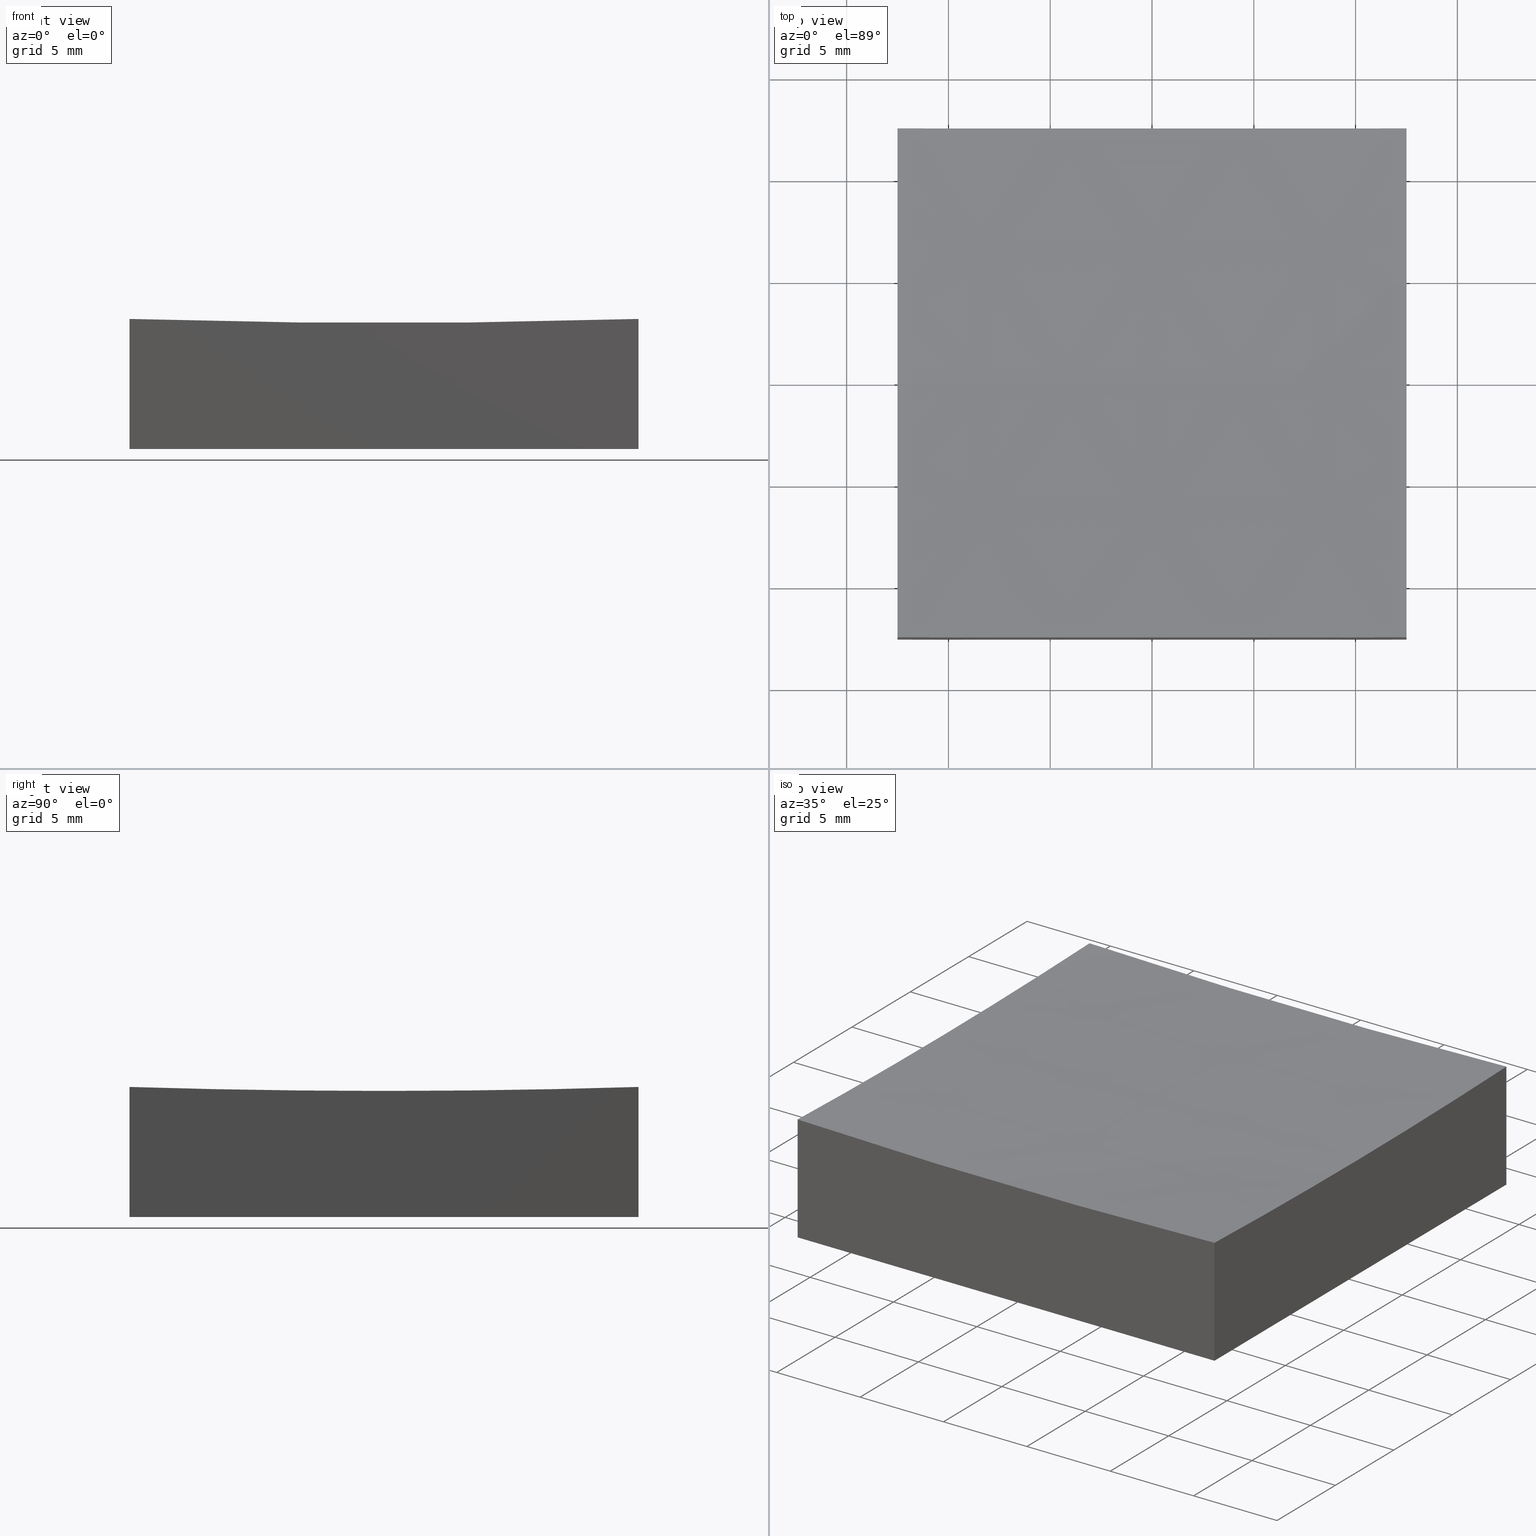
[diagram: canonical four-view strip — front | top / right | iso, engineering-drawing reading convention]
A machine part, canonical four-view strip (front | top / right | iso — engineering-drawing reading convention). The complete STEP part file that produces these views, byte-faithful:
ISO-10303-21;
HEADER;
FILE_DESCRIPTION (( 'STEP AP214' ),
    '1' );
FILE_NAME ('270040.STEP',
    '2020-06-05T06:39:44',
    ( '' ),
    ( '' ),
    'SwSTEP 2.0',
    'SolidWorks 2019',
    '' );
FILE_SCHEMA (( 'AUTOMOTIVE_DESIGN' ));
ENDSEC;

DATA;
#1 = DIRECTION ( 'NONE',  ( -1.388456903851858804E-16, 1.000000000000000000, 0.0000000000000000000 ) ) ;
#2 = CARTESIAN_POINT ( 'NONE',  ( 0.0000000000000000000, 0.0000000000000000000, 0.0000000000000000000 ) ) ;
#3 = ADVANCED_FACE ( 'NONE', ( #151 ), #167, .T. ) ;
#4 = CARTESIAN_POINT ( 'NONE',  ( 12.50000000000000178, 1.734723475976800586E-15, 406.0000000000000000 ) ) ;
#5 = EDGE_CURVE ( 'NONE', #32, #72, #222, .T. ) ;
#6 = EDGE_CURVE ( 'NONE', #46, #210, #146, .T. ) ;
#7 = EDGE_LOOP ( 'NONE', ( #93, #135, #118, #29 ) ) ;
#8 = LINE ( 'NONE', #149, #60 ) ;
#9 = ORIENTED_EDGE ( 'NONE', *, *, #27, .F. ) ;
#10 = ORIENTED_EDGE ( 'NONE', *, *, #5, .F. ) ;
#11 = SURFACE_STYLE_FILL_AREA ( #232 ) ;
#12 = DIRECTION ( 'NONE',  ( 1.000000000000000000, 0.0000000000000000000, 0.0000000000000000000 ) ) ;
#13 =( NAMED_UNIT ( * ) PLANE_ANGLE_UNIT ( ) SI_UNIT ( $, .RADIAN. ) );
#14 = DIRECTION ( 'NONE',  ( 0.0000000000000000000, 1.000000000000000000, 0.0000000000000000000 ) ) ;
#15 = AXIS2_PLACEMENT_3D ( 'NONE', #2, #84, #22 ) ;
#16 = APPLICATION_CONTEXT ( 'automotive_design' ) ;
#17 = EDGE_CURVE ( 'NONE', #175, #73, #194, .T. ) ;
#18 = DIRECTION ( 'NONE',  ( 1.387778780781445676E-16, -1.000000000000000000, 0.0000000000000000000 ) ) ;
#19 = LINE ( 'NONE', #126, #117 ) ;
#20 = ADVANCED_FACE ( 'NONE', ( #145 ), #220, .F. ) ;
#21 = DIRECTION ( 'NONE',  ( 1.000000000000000000, 1.387778780781445676E-16, -0.0000000000000000000 ) ) ;
#22 = DIRECTION ( 'NONE',  ( -1.000000000000000000, 0.0000000000000000000, -0.0000000000000000000 ) ) ;
#23 = COLOUR_RGB ( '',1.000000000000000000, 1.000000000000000000, 1.000000000000000000 ) ;
#24 = ADVANCED_FACE ( 'NONE', ( #108 ), #238, .T. ) ;
#25 = CARTESIAN_POINT ( 'NONE',  ( -12.49999999999999645, 1.530808498934189155E-15, 6.195360207013139942 ) ) ;
#26 = ORIENTED_EDGE ( 'NONE', *, *, #58, .F. ) ;
#27 = EDGE_CURVE ( 'NONE', #134, #92, #188, .T. ) ;
#28 = CARTESIAN_POINT ( 'NONE',  ( 4.972066004538253326E-14, 0.0000000000000000000, 406.0000000000000000 ) ) ;
#29 = ORIENTED_EDGE ( 'NONE', *, *, #69, .F. ) ;
#30 = ORIENTED_EDGE ( 'NONE', *, *, #38, .T. ) ;
#31 = PRODUCT_DEFINITION_CONTEXT ( 'detailed design', #16, 'design' ) ;
#32 = VERTEX_POINT ( 'NONE', #185 ) ;
#33 = CIRCLE ( 'NONE', #184, 399.8046397929869613 ) ;
#34 =( NAMED_UNIT ( * ) SI_UNIT ( $, .STERADIAN. ) SOLID_ANGLE_UNIT ( ) );
#35 = CARTESIAN_POINT ( 'NONE',  ( 0.0000000000000000000, 0.0000000000000000000, 0.0000000000000000000 ) ) ;
#36 = FILL_AREA_STYLE_COLOUR ( '', #124 ) ;
#37 = VECTOR ( 'NONE', #178, 1000.000000000000000 ) ;
#38 = EDGE_CURVE ( 'NONE', #210, #72, #19, .T. ) ;
#39 = ADVANCED_FACE ( 'NONE', ( #219 ), #236, .F. ) ;
#40 = CARTESIAN_POINT ( 'NONE',  ( 12.50000000000000000, -9.629649721936179265E-32, 6.195360207013139942 ) ) ;
#41 = DIRECTION ( 'NONE',  ( 0.0000000000000000000, -0.0000000000000000000, 1.000000000000000000 ) ) ;
#42 = DIRECTION ( 'NONE',  ( 1.000000000000000000, 0.0000000000000000000, 0.0000000000000000000 ) ) ;
#43 = CARTESIAN_POINT ( 'NONE',  ( 12.50000000000000000, 12.50000000000000000, 20.00000000000000000 ) ) ;
#44 = AXIS2_PLACEMENT_3D ( 'NONE', #180, #160, #76 ) ;
#45 =( NAMED_UNIT ( * ) SI_UNIT ( $, .STERADIAN. ) SOLID_ANGLE_UNIT ( ) );
#46 = VERTEX_POINT ( 'NONE', #40 ) ;
#47 = DIRECTION ( 'NONE',  ( 0.0000000000000000000, 0.0000000000000000000, 1.000000000000000000 ) ) ;
#48 = ORIENTED_EDGE ( 'NONE', *, *, #158, .F. ) ;
#49 = UNCERTAINTY_MEASURE_WITH_UNIT (LENGTH_MEASURE( 1.000000000000000082E-05 ), #235, 'distance_accuracy_value', 'NONE');
#50 = ORIENTED_EDGE ( 'NONE', *, *, #132, .T. ) ;
#51 = ORIENTED_EDGE ( 'NONE', *, *, #198, .T. ) ;
#52 = ORIENTED_EDGE ( 'NONE', *, *, #158, .T. ) ;
#53 = ADVANCED_FACE ( 'NONE', ( #81 ), #125, .F. ) ;
#54 = AXIS2_PLACEMENT_3D ( 'NONE', #66, #63, #147 ) ;
#55 = PRODUCT_CONTEXT ( 'NONE', #246, 'mechanical' ) ;
#56 = SURFACE_SIDE_STYLE ('',( #234 ) ) ;
#57 = CARTESIAN_POINT ( 'NONE',  ( 12.50000000000000000, 12.50000000000000000, 0.0000000000000000000 ) ) ;
#58 = EDGE_CURVE ( 'NONE', #210, #73, #181, .T. ) ;
#59 = PLANE ( 'NONE',  #161 ) ;
#60 = VECTOR ( 'NONE', #122, 1000.000000000000000 ) ;
#61 = CARTESIAN_POINT ( 'NONE',  ( 4.972066004538253326E-14, 0.0000000000000000000, 406.0000000000000000 ) ) ;
#62 = CARTESIAN_POINT ( 'NONE',  ( -12.49999999999999645, -12.50000000000000000, 20.00000000000000000 ) ) ;
#63 = DIRECTION ( 'NONE',  ( 1.000000000000000000, 1.387778780781445676E-16, -0.0000000000000000000 ) ) ;
#64 = CARTESIAN_POINT ( 'NONE',  ( 12.50000000000000355, -12.50000000000000000, 20.00000000000000000 ) ) ;
#65 = AXIS2_PLACEMENT_3D ( 'NONE', #4, #87, #187 ) ;
#66 = CARTESIAN_POINT ( 'NONE',  ( -12.49999999999999822, -1.734723475976813997E-15, 406.0000000000000000 ) ) ;
#67 = CIRCLE ( 'NONE', #171, 400.0000000000000000 ) ;
#68 = DIRECTION ( 'NONE',  ( 1.000000000000000000, 0.0000000000000000000, -1.387778780781445676E-16 ) ) ;
#69 = EDGE_CURVE ( 'NONE', #32, #177, #186, .T. ) ;
#70 = ORIENTED_EDGE ( 'NONE', *, *, #6, .F. ) ;
#71 = ORIENTED_EDGE ( 'NONE', *, *, #69, .T. ) ;
#72 = VERTEX_POINT ( 'NONE', #106 ) ;
#73 = VERTEX_POINT ( 'NONE', #203 ) ;
#74 =( NAMED_UNIT ( * ) SI_UNIT ( $, .STERADIAN. ) SOLID_ANGLE_UNIT ( ) );
#75 = AXIS2_PLACEMENT_3D ( 'NONE', #127, #21, #204 ) ;
#76 = DIRECTION ( 'NONE',  ( -1.388456903851858804E-16, 1.000000000000000000, 0.0000000000000000000 ) ) ;
#77 = ADVANCED_BREP_SHAPE_REPRESENTATION ( '270040', ( #130, #206 ), #86 ) ;
#78 = EDGE_CURVE ( 'NONE', #211, #175, #168, .T. ) ;
#79 =( LENGTH_UNIT ( ) NAMED_UNIT ( * ) SI_UNIT ( .MILLI., .METRE. ) );
#80 = STYLED_ITEM ( 'NONE', ( #139 ), #130 ) ;
#81 = FACE_OUTER_BOUND ( 'NONE', #248, .T. ) ;
#82 = EDGE_CURVE ( 'NONE', #177, #92, #250, .T. ) ;
#83 = DIRECTION ( 'NONE',  ( 1.000000000000000000, 0.0000000000000000000, -1.387778780781445676E-16 ) ) ;
#84 = DIRECTION ( 'NONE',  ( 0.0000000000000000000, 0.0000000000000000000, -1.000000000000000000 ) ) ;
#85 = PRODUCT ( '270040', '270040', '', ( #55 ) ) ;
#86 =( GEOMETRIC_REPRESENTATION_CONTEXT ( 3 ) GLOBAL_UNCERTAINTY_ASSIGNED_CONTEXT ( ( #155 ) ) GLOBAL_UNIT_ASSIGNED_CONTEXT ( ( #231, #13, #34 ) ) REPRESENTATION_CONTEXT ( 'NONE', 'WORKASPACE' ) );
#87 = DIRECTION ( 'NONE',  ( 1.000000000000000000, 1.387778780781445676E-16, -0.0000000000000000000 ) ) ;
#88 = VECTOR ( 'NONE', #109, 1000.000000000000000 ) ;
#89 = CIRCLE ( 'NONE', #217, 400.0000000000000000 ) ;
#90 = CARTESIAN_POINT ( 'NONE',  ( -12.49999999999999645, -12.50000000000000000, 20.00000000000000000 ) ) ;
#91 = ORIENTED_EDGE ( 'NONE', *, *, #58, .T. ) ;
#92 = VERTEX_POINT ( 'NONE', #104 ) ;
#93 = ORIENTED_EDGE ( 'NONE', *, *, #5, .T. ) ;
#94 = EDGE_LOOP ( 'NONE', ( #153, #52, #245, #91, #209 ) ) ;
#95 = PRODUCT_DEFINITION_SHAPE ( 'NONE', 'NONE',  #249 ) ;
#96 =( NAMED_UNIT ( * ) PLANE_ANGLE_UNIT ( ) SI_UNIT ( $, .RADIAN. ) );
#97 = MECHANICAL_DESIGN_GEOMETRIC_PRESENTATION_REPRESENTATION (  '', ( #163 ), #142 ) ;
#98 = ADVANCED_FACE ( 'NONE', ( #99 ), #59, .T. ) ;
#99 = FACE_OUTER_BOUND ( 'NONE', #115, .T. ) ;
#100 = SURFACE_STYLE_USAGE ( .BOTH. , #196 ) ;
#101 = AXIS2_PLACEMENT_3D ( 'NONE', #143, #107, #123 ) ;
#102 = DIRECTION ( 'NONE',  ( 1.000000000000000000, 0.0000000000000000000, 0.0000000000000000000 ) ) ;
#103 = APPLICATION_PROTOCOL_DEFINITION ( 'draft international standard', 'automotive_design', 1998, #246 ) ;
#104 = CARTESIAN_POINT ( 'NONE',  ( 12.50000000000000355, -12.50000000000000000, 0.0000000000000000000 ) ) ;
#105 = MECHANICAL_DESIGN_GEOMETRIC_PRESENTATION_REPRESENTATION (  '', ( #80 ), #148 ) ;
#106 = CARTESIAN_POINT ( 'NONE',  ( 12.50000000000000000, 12.50000000000000000, 0.0000000000000000000 ) ) ;
#107 = DIRECTION ( 'NONE',  ( 0.0000000000000000000, 1.000000000000000000, 0.0000000000000000000 ) ) ;
#108 = FACE_OUTER_BOUND ( 'NONE', #225, .T. ) ;
#109 = DIRECTION ( 'NONE',  ( -0.0000000000000000000, -0.0000000000000000000, -1.000000000000000000 ) ) ;
#110 = EDGE_CURVE ( 'NONE', #134, #46, #213, .T. ) ;
#111 = PRODUCT_DEFINITION_FORMATION_WITH_SPECIFIED_SOURCE ( '�κ�', '', #85, .NOT_KNOWN. ) ;
#112 = CARTESIAN_POINT ( 'NONE',  ( -12.49999999999999645, -12.50000000000000000, 0.0000000000000000000 ) ) ;
#113 = ORIENTED_EDGE ( 'NONE', *, *, #17, .T. ) ;
#114 = DIRECTION ( 'NONE',  ( -0.0000000000000000000, -0.0000000000000000000, -1.000000000000000000 ) ) ;
#115 = EDGE_LOOP ( 'NONE', ( #26, #30, #10, #190 ) ) ;
#116 = ORIENTED_EDGE ( 'NONE', *, *, #82, .T. ) ;
#117 = VECTOR ( 'NONE', #165, 1000.000000000000000 ) ;
#118 = ORIENTED_EDGE ( 'NONE', *, *, #82, .F. ) ;
#119 = FILL_AREA_STYLE ('',( #36 ) ) ;
#120 = LINE ( 'NONE', #57, #37 ) ;
#121 = PRESENTATION_LAYER_ASSIGNMENT (  '', '', ( #163 ) ) ;
#122 = DIRECTION ( 'NONE',  ( -0.0000000000000000000, -0.0000000000000000000, -1.000000000000000000 ) ) ;
#123 = DIRECTION ( 'NONE',  ( 0.0000000000000000000, 0.0000000000000000000, 1.000000000000000000 ) ) ;
#124 = COLOUR_RGB ( '',1.000000000000000000, 1.000000000000000000, 1.000000000000000000 ) ;
#125 = PLANE ( 'NONE',  #212 ) ;
#126 = CARTESIAN_POINT ( 'NONE',  ( 12.50000000000000000, 12.50000000000000000, 20.00000000000000000 ) ) ;
#127 = CARTESIAN_POINT ( 'NONE',  ( -12.50000000000000000, 12.50000000000000000, 20.00000000000000000 ) ) ;
#128 = DIRECTION ( 'NONE',  ( 1.000000000000000000, 1.387778780781445676E-16, -0.0000000000000000000 ) ) ;
#129 = LINE ( 'NONE', #90, #201 ) ;
#130 = MANIFOLD_SOLID_BREP ( '�г�-��ת2', #136 ) ;
#131 = ORIENTED_EDGE ( 'NONE', *, *, #78, .T. ) ;
#132 = EDGE_CURVE ( 'NONE', #134, #211, #33, .T. ) ;
#133 = DIRECTION ( 'NONE',  ( 0.0000000000000000000, 0.0000000000000000000, -1.000000000000000000 ) ) ;
#134 = VERTEX_POINT ( 'NONE', #172 ) ;
#135 = ORIENTED_EDGE ( 'NONE', *, *, #233, .T. ) ;
#136 = CLOSED_SHELL ( 'NONE', ( #39, #98, #20, #53, #24, #3, #195 ) ) ;
#137 = VECTOR ( 'NONE', #102, 1000.000000000000000 ) ;
#138 = CARTESIAN_POINT ( 'NONE',  ( -12.49999999999999645, -12.50000000000000000, 6.390815921355486040 ) ) ;
#139 = PRESENTATION_STYLE_ASSIGNMENT (( #197 ) ) ;
#140 = FILL_AREA_STYLE_COLOUR ( '', #23 ) ;
#141 =( NAMED_UNIT ( * ) PLANE_ANGLE_UNIT ( ) SI_UNIT ( $, .RADIAN. ) );
#142 =( GEOMETRIC_REPRESENTATION_CONTEXT ( 3 ) GLOBAL_UNCERTAINTY_ASSIGNED_CONTEXT ( ( #49 ) ) GLOBAL_UNIT_ASSIGNED_CONTEXT ( ( #235, #96, #74 ) ) REPRESENTATION_CONTEXT ( 'NONE', 'WORKASPACE' ) );
#143 = CARTESIAN_POINT ( 'NONE',  ( 4.972066004538253326E-14, 12.50000000000000000, 406.0000000000000000 ) ) ;
#144 = DIRECTION ( 'NONE',  ( 0.0000000000000000000, 1.000000000000000000, 0.0000000000000000000 ) ) ;
#145 = FACE_OUTER_BOUND ( 'NONE', #227, .T. ) ;
#146 = CIRCLE ( 'NONE', #65, 399.8046397929869045 ) ;
#147 = DIRECTION ( 'NONE',  ( -1.388456903851858804E-16, 1.000000000000000000, 0.0000000000000000000 ) ) ;
#148 =( GEOMETRIC_REPRESENTATION_CONTEXT ( 3 ) GLOBAL_UNCERTAINTY_ASSIGNED_CONTEXT ( ( #228 ) ) GLOBAL_UNIT_ASSIGNED_CONTEXT ( ( #79, #141, #45 ) ) REPRESENTATION_CONTEXT ( 'NONE', 'WORKASPACE' ) );
#149 = CARTESIAN_POINT ( 'NONE',  ( -12.50000000000000000, 12.50000000000000000, 20.00000000000000000 ) ) ;
#150 = DIRECTION ( 'NONE',  ( 0.0000000000000000000, 1.000000000000000000, 0.0000000000000000000 ) ) ;
#151 = FACE_OUTER_BOUND ( 'NONE', #7, .T. ) ;
#152 = ORIENTED_EDGE ( 'NONE', *, *, #27, .T. ) ;
#153 = ORIENTED_EDGE ( 'NONE', *, *, #166, .F. ) ;
#154 = ORIENTED_EDGE ( 'NONE', *, *, #110, .F. ) ;
#155 = UNCERTAINTY_MEASURE_WITH_UNIT (LENGTH_MEASURE( 1.000000000000000082E-05 ), #231, 'distance_accuracy_value', 'NONE');
#156 = ORIENTED_EDGE ( 'NONE', *, *, #132, .F. ) ;
#157 = DIRECTION ( 'NONE',  ( 0.0000000000000000000, 0.0000000000000000000, 1.000000000000000000 ) ) ;
#158 = EDGE_CURVE ( 'NONE', #226, #46, #67, .T. ) ;
#159 = VECTOR ( 'NONE', #42, 1000.000000000000000 ) ;
#160 = DIRECTION ( 'NONE',  ( 1.000000000000000000, 1.387778780781445676E-16, -0.0000000000000000000 ) ) ;
#161 = AXIS2_PLACEMENT_3D ( 'NONE', #200, #14, #182 ) ;
#162 = EDGE_CURVE ( 'NONE', #211, #177, #129, .T. ) ;
#163 = STYLED_ITEM ( 'NONE', ( #183 ), #77 ) ;
#164 = CARTESIAN_POINT ( 'NONE',  ( -12.49999999999999822, -1.734723475976813997E-15, 406.0000000000000000 ) ) ;
#165 = DIRECTION ( 'NONE',  ( -0.0000000000000000000, -0.0000000000000000000, -1.000000000000000000 ) ) ;
#166 = EDGE_CURVE ( 'NONE', #226, #175, #89, .T. ) ;
#167 = PLANE ( 'NONE',  #15 ) ;
#168 = CIRCLE ( 'NONE', #241, 399.8046397929869045 ) ;
#169 = CARTESIAN_POINT ( 'NONE',  ( -12.50000000000000000, 12.50000000000000000, 0.0000000000000000000 ) ) ;
#170 = PRODUCT_RELATED_PRODUCT_CATEGORY ( 'part', '', ( #85 ) ) ;
#171 = AXIS2_PLACEMENT_3D ( 'NONE', #28, #224, #133 ) ;
#172 = CARTESIAN_POINT ( 'NONE',  ( 12.50000000000000355, -12.50000000000000000, 6.390815921355486040 ) ) ;
#173 = ORIENTED_EDGE ( 'NONE', *, *, #38, .F. ) ;
#174 = SPHERICAL_SURFACE ( 'NONE', #199, 400.0000000000000000 ) ;
#175 = VERTEX_POINT ( 'NONE', #25 ) ;
#176 = ORIENTED_EDGE ( 'NONE', *, *, #110, .T. ) ;
#177 = VERTEX_POINT ( 'NONE', #112 ) ;
#178 = DIRECTION ( 'NONE',  ( 1.387778780781445676E-16, -1.000000000000000000, 0.0000000000000000000 ) ) ;
#179 = CARTESIAN_POINT ( 'NONE',  ( 12.50000000000000000, 12.50000000000000000, 6.390815921355486040 ) ) ;
#180 = CARTESIAN_POINT ( 'NONE',  ( 12.50000000000000178, 1.734723475976800586E-15, 406.0000000000000000 ) ) ;
#181 = CIRCLE ( 'NONE', #101, 399.8046397929869613 ) ;
#182 = DIRECTION ( 'NONE',  ( 0.0000000000000000000, -0.0000000000000000000, 1.000000000000000000 ) ) ;
#183 = PRESENTATION_STYLE_ASSIGNMENT (( #100 ) ) ;
#184 = AXIS2_PLACEMENT_3D ( 'NONE', #242, #150, #47 ) ;
#185 = CARTESIAN_POINT ( 'NONE',  ( -12.50000000000000000, 12.50000000000000000, 0.0000000000000000000 ) ) ;
#186 = LINE ( 'NONE', #202, #239 ) ;
#187 = DIRECTION ( 'NONE',  ( -1.388456903851858804E-16, 1.000000000000000000, 0.0000000000000000000 ) ) ;
#188 = LINE ( 'NONE', #64, #88 ) ;
#189 = FACE_OUTER_BOUND ( 'NONE', #94, .T. ) ;
#190 = ORIENTED_EDGE ( 'NONE', *, *, #198, .F. ) ;
#191 = DIRECTION ( 'NONE',  ( 1.224646799147353207E-16, 1.000000000000000000, -2.010501073696115557E-32 ) ) ;
#192 = ORIENTED_EDGE ( 'NONE', *, *, #233, .F. ) ;
#193 = ORIENTED_EDGE ( 'NONE', *, *, #162, .F. ) ;
#194 = CIRCLE ( 'NONE', #54, 399.8046397929869045 ) ;
#195 = ADVANCED_FACE ( 'NONE', ( #189 ), #174, .F. ) ;
#196 = SURFACE_SIDE_STYLE ('',( #11 ) ) ;
#197 = SURFACE_STYLE_USAGE ( .BOTH. , #56 ) ;
#198 = EDGE_CURVE ( 'NONE', #73, #32, #8, .T. ) ;
#199 = AXIS2_PLACEMENT_3D ( 'NONE', #244, #240, #68 ) ;
#200 = CARTESIAN_POINT ( 'NONE',  ( -12.50000000000000000, 12.50000000000000000, 20.00000000000000000 ) ) ;
#201 = VECTOR ( 'NONE', #114, 1000.000000000000000 ) ;
#202 = CARTESIAN_POINT ( 'NONE',  ( -12.50000000000000000, 12.50000000000000000, 0.0000000000000000000 ) ) ;
#203 = CARTESIAN_POINT ( 'NONE',  ( -12.50000000000000000, 12.50000000000000000, 6.390815921355486040 ) ) ;
#204 = DIRECTION ( 'NONE',  ( -1.387778780781445676E-16, 1.000000000000000000, 0.0000000000000000000 ) ) ;
#205 = DIRECTION ( 'NONE',  ( -1.387778780781445676E-16, 1.000000000000000000, 0.0000000000000000000 ) ) ;
#206 = AXIS2_PLACEMENT_3D ( 'NONE', #35, #157, #12 ) ;
#207 = ORIENTED_EDGE ( 'NONE', *, *, #162, .T. ) ;
#208 = CARTESIAN_POINT ( 'NONE',  ( 4.972066004538253326E-14, 0.0000000000000000000, 406.0000000000000000 ) ) ;
#209 = ORIENTED_EDGE ( 'NONE', *, *, #17, .F. ) ;
#210 = VERTEX_POINT ( 'NONE', #179 ) ;
#211 = VERTEX_POINT ( 'NONE', #138 ) ;
#212 = AXIS2_PLACEMENT_3D ( 'NONE', #62, #144, #41 ) ;
#213 = CIRCLE ( 'NONE', #44, 399.8046397929869045 ) ;
#214 = SHAPE_DEFINITION_REPRESENTATION ( #95, #77 ) ;
#215 = APPLICATION_PROTOCOL_DEFINITION ( 'draft international standard', 'automotive_design', 1998, #16 ) ;
#216 = CARTESIAN_POINT ( 'NONE',  ( -12.49999999999999645, -12.50000000000000000, 0.0000000000000000000 ) ) ;
#217 = AXIS2_PLACEMENT_3D ( 'NONE', #208, #191, #223 ) ;
#218 = DIRECTION ( 'NONE',  ( 1.000000000000000000, 1.387778780781445676E-16, -0.0000000000000000000 ) ) ;
#219 = FACE_OUTER_BOUND ( 'NONE', #247, .T. ) ;
#220 = PLANE ( 'NONE',  #75 ) ;
#221 = AXIS2_PLACEMENT_3D ( 'NONE', #43, #128, #205 ) ;
#222 = LINE ( 'NONE', #169, #159 ) ;
#223 = DIRECTION ( 'NONE',  ( -1.000000000000000000, 1.224646799147353207E-16, 0.0000000000000000000 ) ) ;
#224 = DIRECTION ( 'NONE',  ( 0.0000000000000000000, -1.000000000000000000, -0.0000000000000000000 ) ) ;
#225 = EDGE_LOOP ( 'NONE', ( #154, #152, #192, #173, #70 ) ) ;
#226 = VERTEX_POINT ( 'NONE', #252 ) ;
#227 = EDGE_LOOP ( 'NONE', ( #193, #131, #113, #51, #71 ) ) ;
#228 = UNCERTAINTY_MEASURE_WITH_UNIT (LENGTH_MEASURE( 1.000000000000000082E-05 ), #79, 'distance_accuracy_value', 'NONE');
#229 = ORIENTED_EDGE ( 'NONE', *, *, #166, .T. ) ;
#230 = PRESENTATION_LAYER_ASSIGNMENT (  '', '', ( #80 ) ) ;
#231 =( LENGTH_UNIT ( ) NAMED_UNIT ( * ) SI_UNIT ( .MILLI., .METRE. ) );
#232 = FILL_AREA_STYLE ('',( #140 ) ) ;
#233 = EDGE_CURVE ( 'NONE', #72, #92, #120, .T. ) ;
#234 = SURFACE_STYLE_FILL_AREA ( #119 ) ;
#235 =( LENGTH_UNIT ( ) NAMED_UNIT ( * ) SI_UNIT ( .MILLI., .METRE. ) );
#236 = SPHERICAL_SURFACE ( 'NONE', #251, 400.0000000000000000 ) ;
#237 = DIRECTION ( 'NONE',  ( 0.0000000000000000000, 1.000000000000000000, 0.0000000000000000000 ) ) ;
#238 = PLANE ( 'NONE',  #221 ) ;
#239 = VECTOR ( 'NONE', #18, 1000.000000000000000 ) ;
#240 = DIRECTION ( 'NONE',  ( 0.0000000000000000000, 1.000000000000000000, 0.0000000000000000000 ) ) ;
#241 = AXIS2_PLACEMENT_3D ( 'NONE', #164, #218, #1 ) ;
#242 = CARTESIAN_POINT ( 'NONE',  ( 4.972066004538253326E-14, -12.50000000000000000, 406.0000000000000000 ) ) ;
#243 = ORIENTED_EDGE ( 'NONE', *, *, #78, .F. ) ;
#244 = CARTESIAN_POINT ( 'NONE',  ( 4.972066004538253326E-14, 0.0000000000000000000, 406.0000000000000000 ) ) ;
#245 = ORIENTED_EDGE ( 'NONE', *, *, #6, .T. ) ;
#246 = APPLICATION_CONTEXT ( 'automotive_design' ) ;
#247 = EDGE_LOOP ( 'NONE', ( #48, #229, #243, #156, #176 ) ) ;
#248 = EDGE_LOOP ( 'NONE', ( #9, #50, #207, #116 ) ) ;
#249 = PRODUCT_DEFINITION ( 'δ֪', '', #111, #31 ) ;
#250 = LINE ( 'NONE', #216, #137 ) ;
#251 = AXIS2_PLACEMENT_3D ( 'NONE', #61, #237, #83 ) ;
#252 = CARTESIAN_POINT ( 'NONE',  ( 8.545647519554498677E-15, 0.0000000000000000000, 6.000000000000005329 ) ) ;
ENDSEC;
END-ISO-10303-21;
